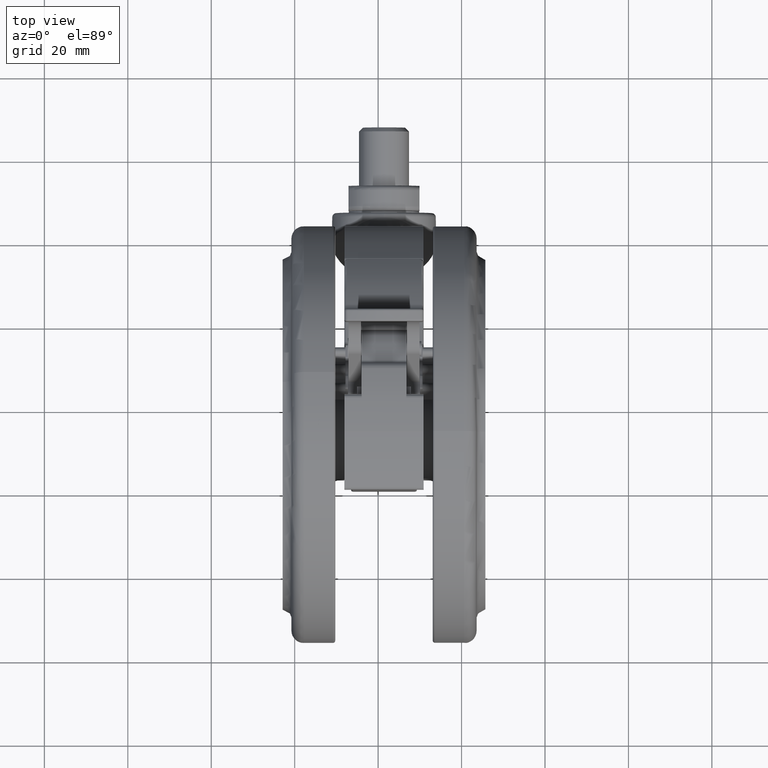
[diagram: clean part render]
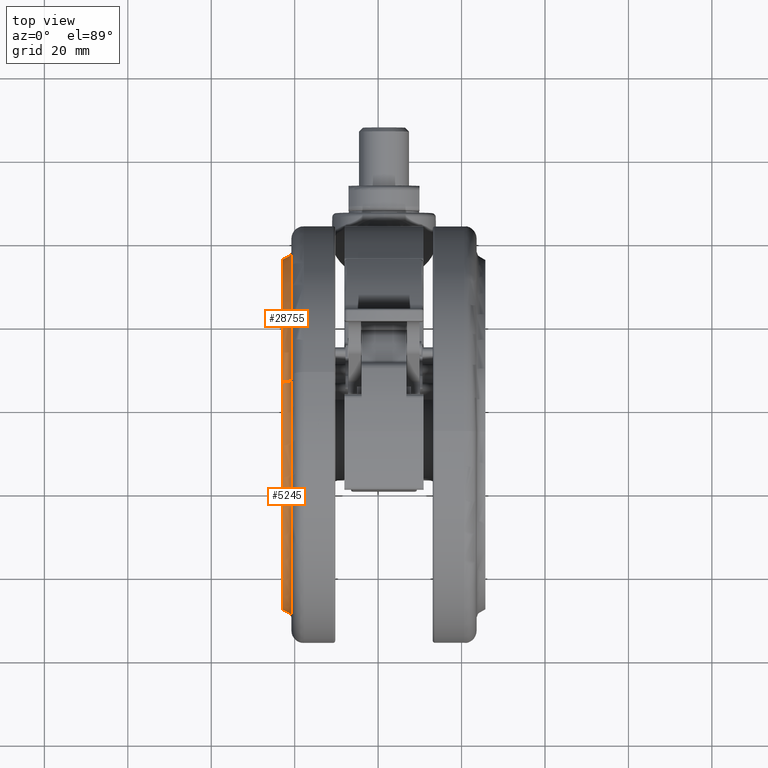
[diagram: same view with one multi-face feature highlighted, each face labeled with its STEP entity id]
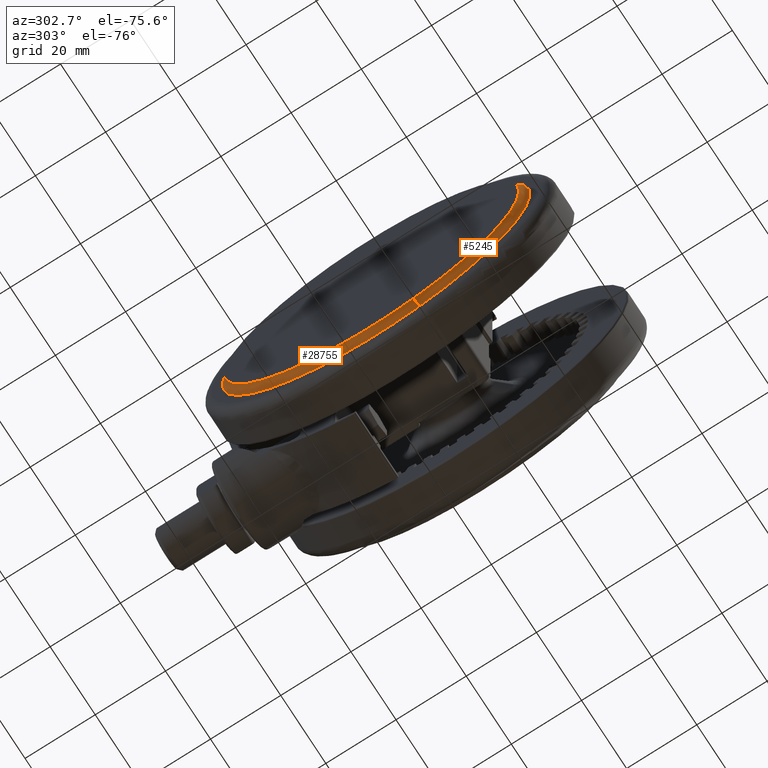
[diagram: same view with one multi-face feature highlighted, each face labeled with its STEP entity id]
A machine part, top view. The highlighted faces form ONE feature: a constant-radius fillet chain: 2 tangent blend faces with common blend radius 2.0507 mm. The faces share edges in the B-rep.
A second angle (auxiliary view) of the same feature is appended — it is thin or edge-on in the first view.
Their STEP definitions:
[1] entity #28755 (Torus):
#1004 = CARTESIAN_POINT ( 'NONE',  ( 1.851304162411305900E-018, -7.794195715109633000E-015, -48.54523809523794100 ) ) ;
#1811 = VERTEX_POINT ( 'NONE', #5338 ) ;
#3081 = EDGE_CURVE ( 'NONE', #1811, #40245, #41679, .T. ) ;
#4807 = DIRECTION ( 'NONE',  ( -3.380642383533773200E-017, -2.202247500052102700E-016, -1.000000000000000000 ) ) ;
#5204 = CARTESIAN_POINT ( 'NONE',  ( 7.070923642777736900E-017, -7.345635376610745900E-015, -46.50840827257597700 ) ) ;
#5338 = CARTESIAN_POINT ( 'NONE',  ( 40.26746124717187300, -11.93608545601798300, -48.54523809523794100 ) ) ;
#8046 = CARTESIAN_POINT ( 'NONE',  ( 42.00508542959794100, -12.45115221437582600, -46.50840827257597700 ) ) ;
#8620 = DIRECTION ( 'NONE',  ( 0.9587657712597810200, -0.2841974592789973700, 3.017487239981050200E-017 ) ) ;
#9022 = DIRECTION ( 'NONE',  ( 0.9587657712597809100, -0.2841974592789973100, 0.0000000000000000000 ) ) ;
#9083 = FACE_OUTER_BOUND ( 'NONE', #42829, .T. ) ;
#12769 = CARTESIAN_POINT ( 'NONE',  ( -42.23363222399335400, 12.51889808123982200, -48.54523809523794100 ) ) ;
#12814 = CIRCLE ( 'NONE', #28202, 43.81162395321010900 ) ;
#13869 = CARTESIAN_POINT ( 'NONE',  ( 42.23363222399335400, -12.51889808123984000, -48.54523809523794100 ) ) ;
#16521 = DIRECTION ( 'NONE',  ( 0.9587657712597809100, -0.2841974592789977000, 0.0000000000000000000 ) ) ;
#17314 = CIRCLE ( 'NONE', #46301, 41.99926869965538100 ) ;
#17611 = DIRECTION ( 'NONE',  ( -0.9587657712597809100, 0.2841974592789977000, 0.0000000000000000000 ) ) ;
#19714 = CARTESIAN_POINT ( 'NONE',  ( 1.851304162411314400E-018, -7.794195715109633000E-015, -48.54523809523794100 ) ) ;
#23165 = CARTESIAN_POINT ( 'NONE',  ( -42.00508542959794100, 12.45115221437581200, -46.50840827257597700 ) ) ;
#23523 = DIRECTION ( 'NONE',  ( 0.0000000000000000000, 1.000000000000000000, -1.652146363197072600E-016 ) ) ;
#26153 = ORIENTED_EDGE ( 'NONE', *, *, #46483, .F. ) ;
#26297 = CARTESIAN_POINT ( 'NONE',  ( -40.26746124717187300, 11.93608545601796900, -48.54523809523794100 ) ) ;
#26441 = AXIS2_PLACEMENT_3D ( 'NONE', #12769, #39119, #16521 ) ;
#27963 = TOROIDAL_SURFACE ( 'NONE', #31787, 44.04999999999999700, 2.050731300344620100 ) ;
#28202 = AXIS2_PLACEMENT_3D ( 'NONE', #5204, #31623, #9022 ) ;
#28755 = ADVANCED_FACE ( 'NONE', ( #9083 ), #27963, .F. ) ;
#31623 = DIRECTION ( 'NONE',  ( -3.380642383533773200E-017, -2.202247500052102700E-016, -1.000000000000000000 ) ) ;
#31787 = AXIS2_PLACEMENT_3D ( 'NONE', #1004, #4807, #8620 ) ;
#34345 = ORIENTED_EDGE ( 'NONE', *, *, #42354, .T. ) ;
#35428 = CIRCLE ( 'NONE', #26441, 2.050731300344617900 ) ;
#36966 = EDGE_CURVE ( 'NONE', #1811, #42663, #17314, .T. ) ;
#37866 = ORIENTED_EDGE ( 'NONE', *, *, #3081, .T. ) ;
#38120 = ORIENTED_EDGE ( 'NONE', *, *, #36966, .F. ) ;
#39119 = DIRECTION ( 'NONE',  ( -0.2841974592789972600, -0.9587657712597810200, 2.207516520505497900E-016 ) ) ;
#40226 = DIRECTION ( 'NONE',  ( 0.2841974592789973700, 0.9587657712597810200, -2.207516520505498100E-016 ) ) ;
#40245 = VERTEX_POINT ( 'NONE', #8046 ) ;
#41086 = AXIS2_PLACEMENT_3D ( 'NONE', #13869, #40226, #17611 ) ;
#41679 = CIRCLE ( 'NONE', #41086, 2.050731300344617900 ) ;
#42354 = EDGE_CURVE ( 'NONE', #40245, #42781, #12814, .T. ) ;
#42663 = VERTEX_POINT ( 'NONE', #26297 ) ;
#42781 = VERTEX_POINT ( 'NONE', #23165 ) ;
#42829 = EDGE_LOOP ( 'NONE', ( #38120, #37866, #34345, #26153 ) ) ;
#46089 = DIRECTION ( 'NONE',  ( -3.380642383533773200E-017, -2.202247500052102700E-016, -1.000000000000000000 ) ) ;
#46301 = AXIS2_PLACEMENT_3D ( 'NONE', #19714, #46089, #23523 ) ;
#46483 = EDGE_CURVE ( 'NONE', #42663, #42781, #35428, .T. ) ;
[2] entity #5245 (Torus):
#148 = AXIS2_PLACEMENT_3D ( 'NONE', #33363, #10761, #14535 ) ;
#1811 = VERTEX_POINT ( 'NONE', #5338 ) ;
#3081 = EDGE_CURVE ( 'NONE', #1811, #40245, #41679, .T. ) ;
#5245 = ADVANCED_FACE ( 'NONE', ( #32745 ), #42743, .F. ) ;
#5338 = CARTESIAN_POINT ( 'NONE',  ( 40.26746124717187300, -11.93608545601798300, -48.54523809523794100 ) ) ;
#6277 = DIRECTION ( 'NONE',  ( -3.380642383533773200E-017, -2.202247500052102700E-016, -1.000000000000000000 ) ) ;
#8046 = CARTESIAN_POINT ( 'NONE',  ( 42.00508542959794100, -12.45115221437582600, -46.50840827257597700 ) ) ;
#8164 = EDGE_CURVE ( 'NONE', #42663, #1811, #23118, .T. ) ;
#10761 = DIRECTION ( 'NONE',  ( -3.380642383533773200E-017, -2.202247500052102700E-016, -1.000000000000000000 ) ) ;
#12769 = CARTESIAN_POINT ( 'NONE',  ( -42.23363222399335400, 12.51889808123982200, -48.54523809523794100 ) ) ;
#12877 = DIRECTION ( 'NONE',  ( -3.380642383533773200E-017, -2.202247500052102700E-016, -1.000000000000000000 ) ) ;
#13869 = CARTESIAN_POINT ( 'NONE',  ( 42.23363222399335400, -12.51889808123984000, -48.54523809523794100 ) ) ;
#14535 = DIRECTION ( 'NONE',  ( 0.9587657712597810200, -0.2841974592789973700, 3.017487239981050200E-017 ) ) ;
#16068 = AXIS2_PLACEMENT_3D ( 'NONE', #28879, #6277, #32667 ) ;
#16521 = DIRECTION ( 'NONE',  ( 0.9587657712597809100, -0.2841974592789977000, 0.0000000000000000000 ) ) ;
#17611 = DIRECTION ( 'NONE',  ( -0.9587657712597809100, 0.2841974592789977000, 0.0000000000000000000 ) ) ;
#23118 = CIRCLE ( 'NONE', #39462, 41.99926869965538100 ) ;
#23165 = CARTESIAN_POINT ( 'NONE',  ( -42.00508542959794100, 12.45115221437581200, -46.50840827257597700 ) ) ;
#23558 = EDGE_CURVE ( 'NONE', #42781, #40245, #34647, .T. ) ;
#26297 = CARTESIAN_POINT ( 'NONE',  ( -40.26746124717187300, 11.93608545601796900, -48.54523809523794100 ) ) ;
#26441 = AXIS2_PLACEMENT_3D ( 'NONE', #12769, #39119, #16521 ) ;
#28879 = CARTESIAN_POINT ( 'NONE',  ( 7.070923642777736900E-017, -7.345635376610745900E-015, -46.50840827257597700 ) ) ;
#31849 = ORIENTED_EDGE ( 'NONE', *, *, #46483, .T. ) ;
#32667 = DIRECTION ( 'NONE',  ( 0.9587657712597809100, -0.2841974592789973100, 0.0000000000000000000 ) ) ;
#32745 = FACE_OUTER_BOUND ( 'NONE', #41699, .T. ) ;
#33363 = CARTESIAN_POINT ( 'NONE',  ( 1.851304162411305900E-018, -7.794195715109633000E-015, -48.54523809523794100 ) ) ;
#34647 = CIRCLE ( 'NONE', #16068, 43.81162395321010900 ) ;
#35428 = CIRCLE ( 'NONE', #26441, 2.050731300344617900 ) ;
#35459 = CARTESIAN_POINT ( 'NONE',  ( 1.851304162411314400E-018, -7.794195715109633000E-015, -48.54523809523794100 ) ) ;
#38613 = ORIENTED_EDGE ( 'NONE', *, *, #3081, .F. ) ;
#39119 = DIRECTION ( 'NONE',  ( -0.2841974592789972600, -0.9587657712597810200, 2.207516520505497900E-016 ) ) ;
#39229 = DIRECTION ( 'NONE',  ( 0.0000000000000000000, 1.000000000000000000, -1.652146363197072600E-016 ) ) ;
#39462 = AXIS2_PLACEMENT_3D ( 'NONE', #35459, #12877, #39229 ) ;
#40226 = DIRECTION ( 'NONE',  ( 0.2841974592789973700, 0.9587657712597810200, -2.207516520505498100E-016 ) ) ;
#40245 = VERTEX_POINT ( 'NONE', #8046 ) ;
#41086 = AXIS2_PLACEMENT_3D ( 'NONE', #13869, #40226, #17611 ) ;
#41679 = CIRCLE ( 'NONE', #41086, 2.050731300344617900 ) ;
#41699 = EDGE_LOOP ( 'NONE', ( #44058, #31849, #44845, #38613 ) ) ;
#42663 = VERTEX_POINT ( 'NONE', #26297 ) ;
#42743 = TOROIDAL_SURFACE ( 'NONE', #148, 44.04999999999999700, 2.050731300344620100 ) ;
#42781 = VERTEX_POINT ( 'NONE', #23165 ) ;
#44058 = ORIENTED_EDGE ( 'NONE', *, *, #8164, .F. ) ;
#44845 = ORIENTED_EDGE ( 'NONE', *, *, #23558, .T. ) ;
#46483 = EDGE_CURVE ( 'NONE', #42663, #42781, #35428, .T. ) ;